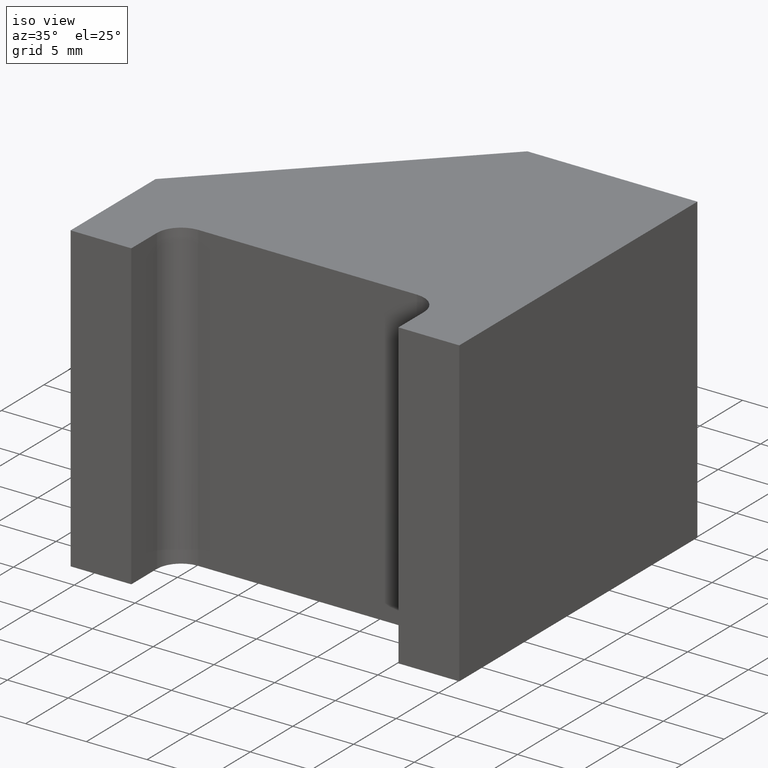
[diagram: clean part render]
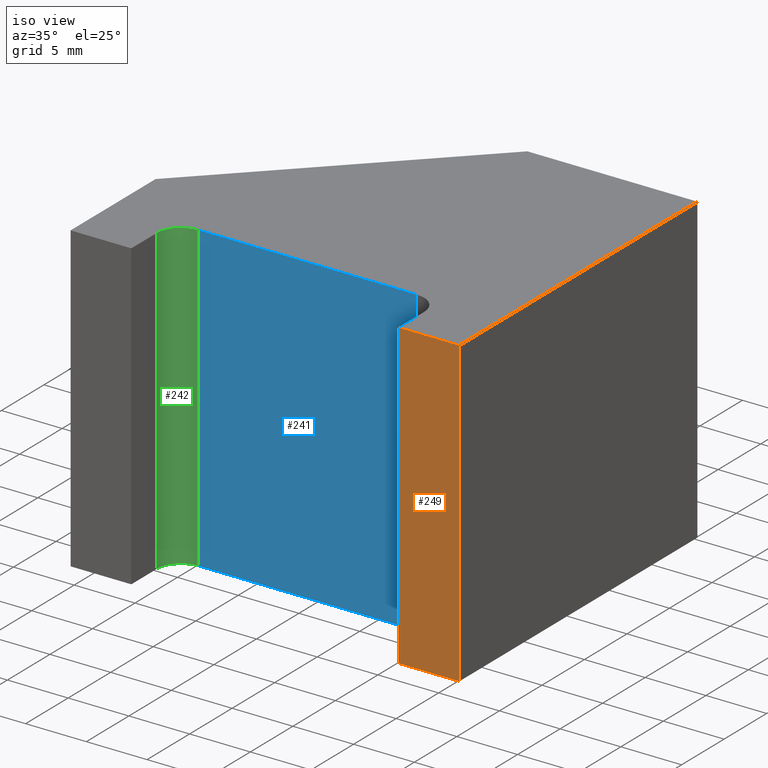
[diagram: same view with three faces highlighted in distinct colors, each labeled with its STEP entity id]
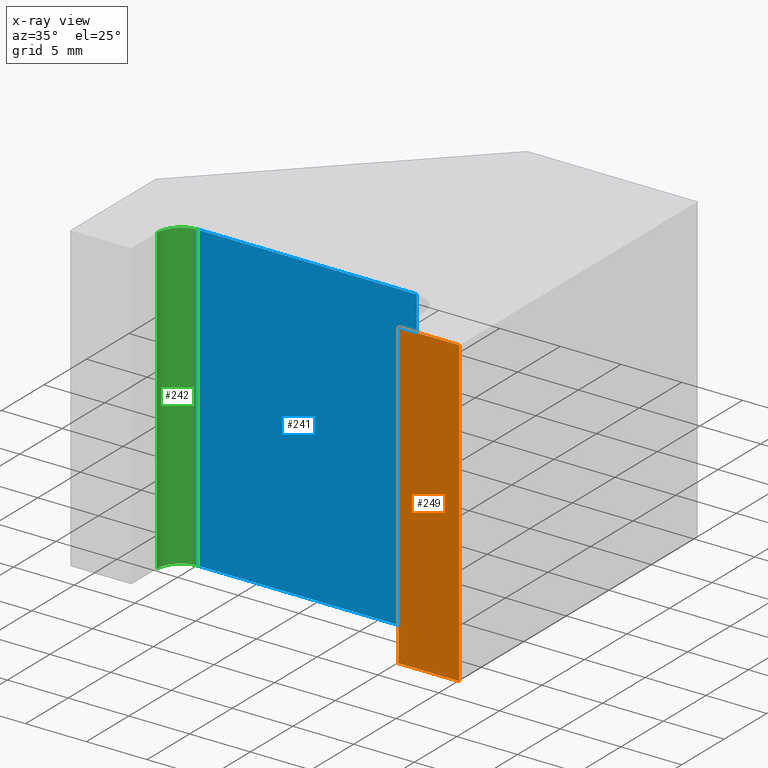
[diagram: x-ray of the same camera — body ghosted, the three highlighted faces saturated]
A machine part, iso view with three faces highlighted in distinct colors.
The next image is the same camera in x-ray (body ghosted, the three faces saturated) — at least one of them is partly hidden behind the body in this view.
Their STEP definitions:

[orange] entity #249 — the highlighted planar face has unit normal (-0, -1, 0).
#29=FACE_OUTER_BOUND('',#42,.T.);
#42=EDGE_LOOP('',(#212,#213,#214,#215));
#49=LINE('',#362,#78);
#59=LINE('',#385,#88);
#75=LINE('',#421,#104);
#76=LINE('',#423,#105);
#78=VECTOR('',#296,10.);
#88=VECTOR('',#312,10.);
#104=VECTOR('',#350,10.);
#105=VECTOR('',#353,10.);
#106=VERTEX_POINT('',#358);
#108=VERTEX_POINT('',#361);
#117=VERTEX_POINT('',#381);
#127=VERTEX_POINT('',#419);
#129=EDGE_CURVE('',#108,#106,#49,.T.);
#141=EDGE_CURVE('',#117,#108,#59,.T.);
#159=EDGE_CURVE('',#106,#127,#75,.T.);
#160=EDGE_CURVE('',#127,#117,#76,.T.);
#212=ORIENTED_EDGE('',*,*,#160,.T.);
#213=ORIENTED_EDGE('',*,*,#141,.T.);
#214=ORIENTED_EDGE('',*,*,#129,.T.);
#215=ORIENTED_EDGE('',*,*,#159,.T.);
#236=PLANE('',#289);
#249=ADVANCED_FACE('',(#29),#236,.T.);
#289=AXIS2_PLACEMENT_3D('',#422,#351,#352);
#296=DIRECTION('',(1.,-4.44089209850062E-16,0.));
#312=DIRECTION('',(0.,0.,-1.));
#350=DIRECTION('',(0.,0.,1.));
#351=DIRECTION('center_axis',(-4.44089209850062E-16,-1.,0.));
#352=DIRECTION('ref_axis',(0.,0.,-1.));
#353=DIRECTION('',(-1.,4.44089209850062E-16,0.));
#358=CARTESIAN_POINT('',(16.,-14.,-12.5));
#361=CARTESIAN_POINT('',(11.,-14.,-12.5));
#362=CARTESIAN_POINT('',(16.,-14.,-12.5));
#381=CARTESIAN_POINT('',(11.,-14.,12.5));
#385=CARTESIAN_POINT('',(11.,-14.,0.));
#419=CARTESIAN_POINT('',(16.,-14.,12.5));
#421=CARTESIAN_POINT('',(16.,-14.,0.));
#422=CARTESIAN_POINT('Origin',(16.,-14.,0.));
#423=CARTESIAN_POINT('',(16.,-14.,12.5));

[blue] entity #241 — the highlighted planar face has unit normal (0, -1, 0).
#21=FACE_OUTER_BOUND('',#34,.T.);
#34=EDGE_LOOP('',(#180,#181,#182,#183));
#51=LINE('',#368,#80);
#60=LINE('',#389,#89);
#61=LINE('',#392,#90);
#62=LINE('',#393,#91);
#80=VECTOR('',#300,10.);
#89=VECTOR('',#317,10.);
#90=VECTOR('',#320,10.);
#91=VECTOR('',#321,10.);
#110=VERTEX_POINT('',#365);
#111=VERTEX_POINT('',#367);
#119=VERTEX_POINT('',#387);
#120=VERTEX_POINT('',#391);
#132=EDGE_CURVE('',#111,#110,#51,.T.);
#143=EDGE_CURVE('',#119,#110,#60,.T.);
#144=EDGE_CURVE('',#119,#120,#61,.T.);
#145=EDGE_CURVE('',#120,#111,#62,.T.);
#180=ORIENTED_EDGE('',*,*,#144,.T.);
#181=ORIENTED_EDGE('',*,*,#145,.T.);
#182=ORIENTED_EDGE('',*,*,#132,.T.);
#183=ORIENTED_EDGE('',*,*,#143,.F.);
#229=PLANE('',#280);
#241=ADVANCED_FACE('',(#21),#229,.T.);
#280=AXIS2_PLACEMENT_3D('',#390,#318,#319);
#300=DIRECTION('',(1.,0.,0.));
#317=DIRECTION('',(0.,0.,-1.));
#318=DIRECTION('center_axis',(0.,-1.,0.));
#319=DIRECTION('ref_axis',(0.,0.,-1.));
#320=DIRECTION('',(-1.,0.,0.));
#321=DIRECTION('',(0.,0.,-1.));
#365=CARTESIAN_POINT('',(9.,-9.,-12.5));
#367=CARTESIAN_POINT('',(-9.,-9.,-12.5));
#368=CARTESIAN_POINT('',(9.,-9.,-12.5));
#387=CARTESIAN_POINT('',(9.,-9.,12.5));
#389=CARTESIAN_POINT('',(9.,-9.,0.));
#390=CARTESIAN_POINT('Origin',(9.,-9.,0.));
#391=CARTESIAN_POINT('',(-9.,-9.,12.5));
#392=CARTESIAN_POINT('',(9.,-9.,12.5));
#393=CARTESIAN_POINT('',(-9.,-9.,0.));

[green] entity #242 — the highlighted cylindrical surface (edge-blend (fillet) strip) has radius 2 mm, axis along (0, 0, 1).
#17=CYLINDRICAL_SURFACE('',#281,2.);
#22=FACE_OUTER_BOUND('',#35,.T.);
#35=EDGE_LOOP('',(#184,#185,#186,#187));
#45=CIRCLE('',#276,2.);
#47=CIRCLE('',#282,2.);
#62=LINE('',#393,#91);
#63=LINE('',#397,#92);
#91=VECTOR('',#321,10.);
#92=VECTOR('',#326,10.);
#111=VERTEX_POINT('',#367);
#112=VERTEX_POINT('',#369);
#120=VERTEX_POINT('',#391);
#121=VERTEX_POINT('',#395);
#133=EDGE_CURVE('',#112,#111,#45,.T.);
#145=EDGE_CURVE('',#120,#111,#62,.T.);
#146=EDGE_CURVE('',#120,#121,#47,.T.);
#147=EDGE_CURVE('',#121,#112,#63,.T.);
#184=ORIENTED_EDGE('',*,*,#146,.T.);
#185=ORIENTED_EDGE('',*,*,#147,.T.);
#186=ORIENTED_EDGE('',*,*,#133,.T.);
#187=ORIENTED_EDGE('',*,*,#145,.F.);
#242=ADVANCED_FACE('',(#22),#17,.F.);
#276=AXIS2_PLACEMENT_3D('',#370,#301,#302);
#281=AXIS2_PLACEMENT_3D('',#394,#322,#323);
#282=AXIS2_PLACEMENT_3D('',#396,#324,#325);
#301=DIRECTION('center_axis',(0.,0.,-1.));
#302=DIRECTION('ref_axis',(1.11022302462516E-15,1.,0.));
#321=DIRECTION('',(0.,0.,-1.));
#322=DIRECTION('center_axis',(0.,0.,1.));
#323=DIRECTION('ref_axis',(1.11022302462516E-15,1.,0.));
#324=DIRECTION('center_axis',(0.,0.,1.));
#325=DIRECTION('ref_axis',(1.11022302462516E-15,1.,0.));
#326=DIRECTION('',(0.,0.,-1.));
#367=CARTESIAN_POINT('',(-9.,-9.,-12.5));
#369=CARTESIAN_POINT('',(-11.,-11.,-12.5));
#370=CARTESIAN_POINT('Origin',(-9.,-11.,-12.5));
#391=CARTESIAN_POINT('',(-9.,-9.,12.5));
#393=CARTESIAN_POINT('',(-9.,-9.,0.));
#394=CARTESIAN_POINT('Origin',(-9.,-11.,0.));
#395=CARTESIAN_POINT('',(-11.,-11.,12.5));
#396=CARTESIAN_POINT('Origin',(-9.,-11.,12.5));
#397=CARTESIAN_POINT('',(-11.,-11.,0.));